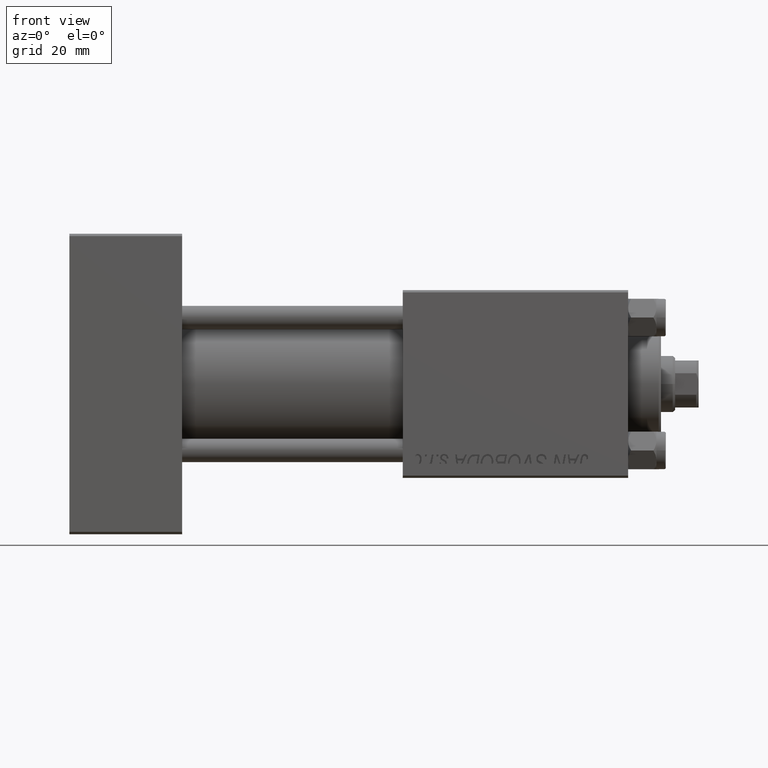
[diagram: clean part render]
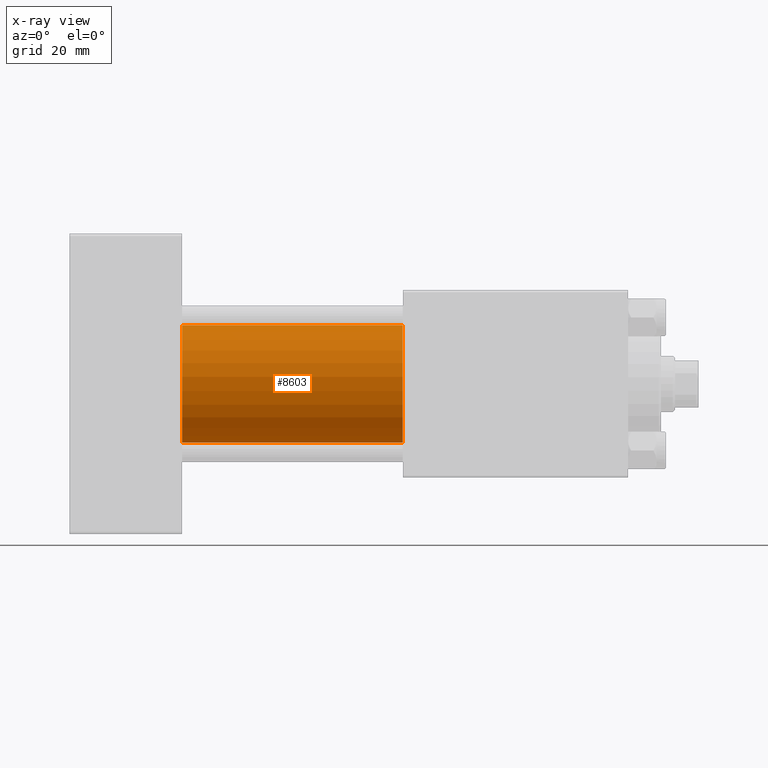
[diagram: x-ray — body ghosted, one internal face saturated and labeled with its STEP entity id]
A machine part, front view, then the same camera in x-ray: the body is ghosted and one INTERNAL B-rep face — a face not visible from any outside direction — is saturated and labeled: STEP entity #8603.
In plain terms, the highlighted cylindrical surface (partial cylindrical patch) has radius 12.5 mm, axis along (-1, -0, -0).
Its self-contained STEP definition (entity closure, byte-faithful):
#720 = DIRECTION ( 'NONE',  ( 0.000000000000000000, 0.000000000000000000, 1.000000000000000000 ) ) ;
#972 = VERTEX_POINT ( 'NONE', #50279 ) ;
#2779 = AXIS2_PLACEMENT_3D ( 'NONE', #13070, #8630, #32409 ) ;
#3938 = EDGE_CURVE ( 'NONE', #24884, #20907, #43145, .T. ) ;
#5390 = ORIENTED_EDGE ( 'NONE', *, *, #43187, .T. ) ;
#6517 = DIRECTION ( 'NONE',  ( 0.000000000000000000, 0.000000000000000000, -1.000000000000000000 ) ) ;
#8603 = ADVANCED_FACE ( 'NONE', ( #44091 ), #27924, .F. ) ;
#8630 = DIRECTION ( 'NONE',  ( 1.000000000000000000, 0.000000000000000000, 0.000000000000000000 ) ) ;
#9597 = VECTOR ( 'NONE', #16694, 1000.000000000000000 ) ;
#12517 = CARTESIAN_POINT ( 'NONE',  ( 71.00000000000001421, -2.602085213965210642E-15, 0.000000000000000000 ) ) ;
#13070 = CARTESIAN_POINT ( 'NONE',  ( 71.00000000000001421, -2.602085213965210642E-15, 0.000000000000000000 ) ) ;
#13527 = CARTESIAN_POINT ( 'NONE',  ( 71.00000000000001421, -1.071276715031019515E-15, -12.49999999999999645 ) ) ;
#13684 = EDGE_CURVE ( 'NONE', #32594, #24884, #19403, .T. ) ;
#16694 = DIRECTION ( 'NONE',  ( -1.000000000000000000, -0.000000000000000000, -0.000000000000000000 ) ) ;
#19403 = LINE ( 'NONE', #22803, #45835 ) ;
#20611 = DIRECTION ( 'NONE',  ( -1.000000000000000000, -0.000000000000000000, -0.000000000000000000 ) ) ;
#20907 = VERTEX_POINT ( 'NONE', #25197 ) ;
#22803 = CARTESIAN_POINT ( 'NONE',  ( 71.00000000000001421, -2.602085213965210642E-15, 12.49999999999999645 ) ) ;
#24260 = CARTESIAN_POINT ( 'NONE',  ( 24.00000000000000000, -2.602085213965210642E-15, 12.49999999999999645 ) ) ;
#24884 = VERTEX_POINT ( 'NONE', #24260 ) ;
#25197 = CARTESIAN_POINT ( 'NONE',  ( 24.00000000000000000, -1.071276715031019515E-15, -12.49999999999999645 ) ) ;
#27924 = CYLINDRICAL_SURFACE ( 'NONE', #42355, 12.49999999999999645 ) ;
#30318 = CARTESIAN_POINT ( 'NONE',  ( 24.00000000000000000, -2.602085213965210642E-15, 0.000000000000000000 ) ) ;
#31870 = EDGE_LOOP ( 'NONE', ( #33950, #5390, #36813, #33903 ) ) ;
#32409 = DIRECTION ( 'NONE',  ( 0.000000000000000000, 0.000000000000000000, -1.000000000000000000 ) ) ;
#32594 = VERTEX_POINT ( 'NONE', #33258 ) ;
#32855 = CIRCLE ( 'NONE', #2779, 12.49999999999999645 ) ;
#33258 = CARTESIAN_POINT ( 'NONE',  ( 71.00000000000001421, -2.602085213965210642E-15, 12.49999999999999645 ) ) ;
#33903 = ORIENTED_EDGE ( 'NONE', *, *, #13684, .F. ) ;
#33950 = ORIENTED_EDGE ( 'NONE', *, *, #36220, .T. ) ;
#36220 = EDGE_CURVE ( 'NONE', #32594, #972, #32855, .T. ) ;
#36813 = ORIENTED_EDGE ( 'NONE', *, *, #3938, .F. ) ;
#38712 = DIRECTION ( 'NONE',  ( -1.000000000000000000, -0.000000000000000000, -0.000000000000000000 ) ) ;
#42355 = AXIS2_PLACEMENT_3D ( 'NONE', #12517, #20611, #720 ) ;
#43145 = CIRCLE ( 'NONE', #46496, 12.49999999999999645 ) ;
#43187 = EDGE_CURVE ( 'NONE', #972, #20907, #49272, .T. ) ;
#44091 = FACE_OUTER_BOUND ( 'NONE', #31870, .T. ) ;
#45835 = VECTOR ( 'NONE', #38712, 1000.000000000000000 ) ;
#46496 = AXIS2_PLACEMENT_3D ( 'NONE', #30318, #50356, #6517 ) ;
#49272 = LINE ( 'NONE', #13527, #9597 ) ;
#50279 = CARTESIAN_POINT ( 'NONE',  ( 71.00000000000001421, -1.071276715031019515E-15, -12.49999999999999645 ) ) ;
#50356 = DIRECTION ( 'NONE',  ( 1.000000000000000000, 0.000000000000000000, 0.000000000000000000 ) ) ;